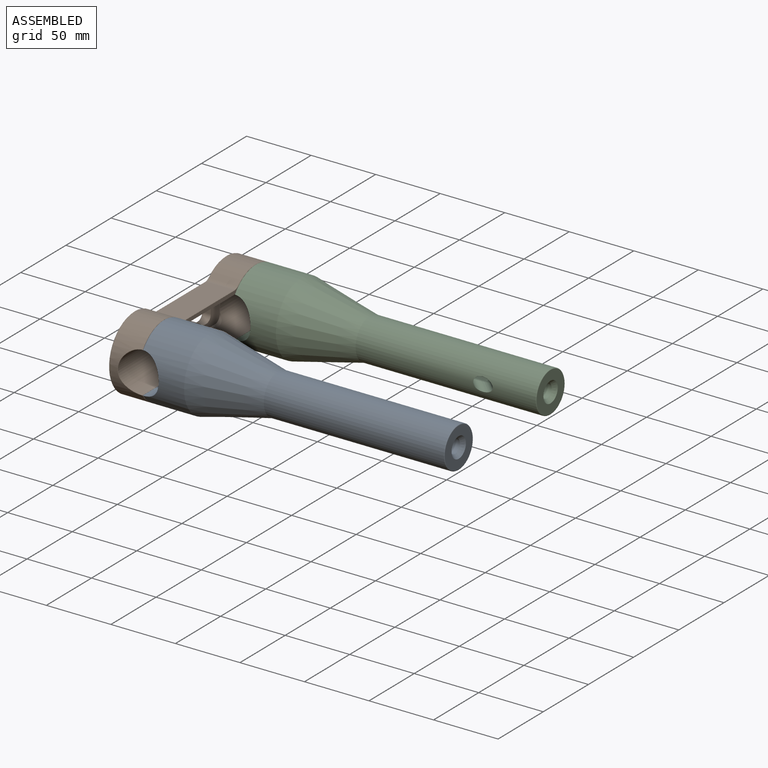
[diagram: assembled view]
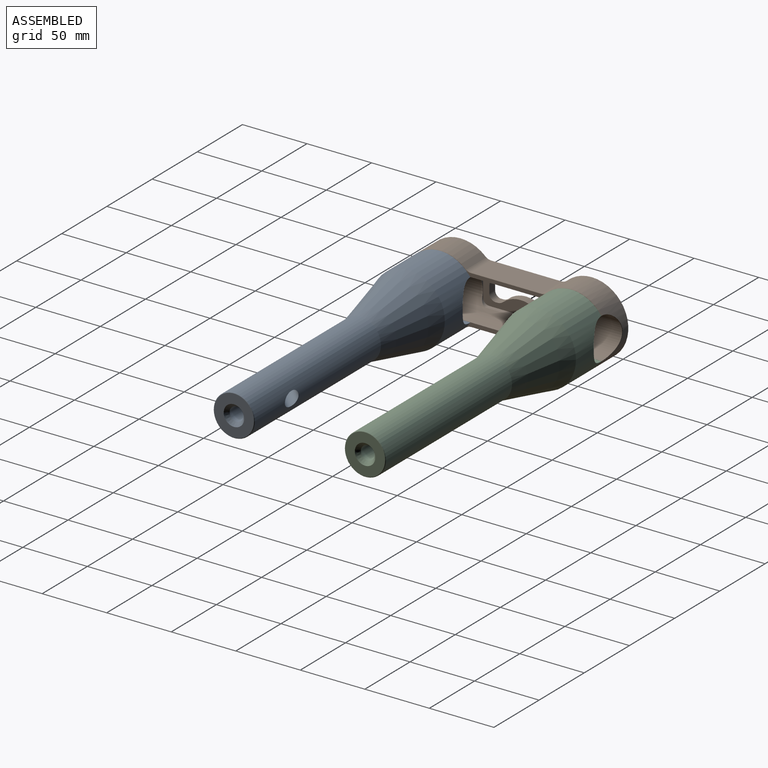
[diagram: assembled view, second angle]
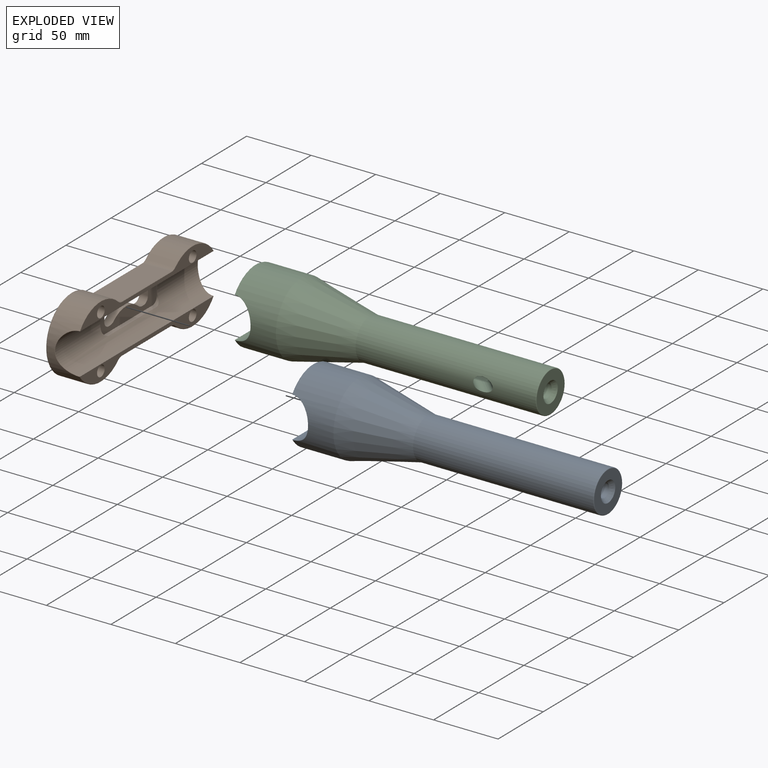
[diagram: exploded view]
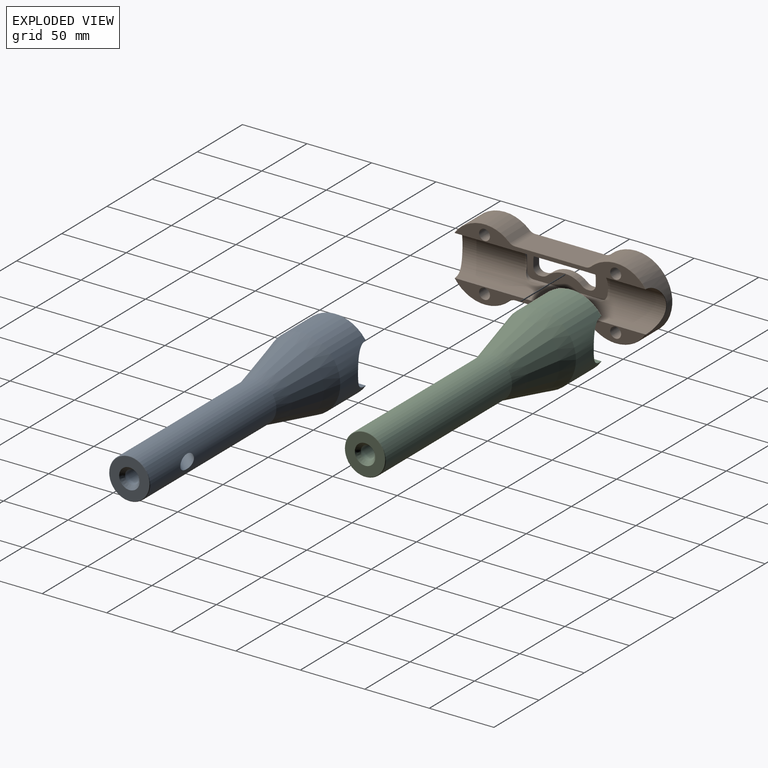
[diagram: exploded view, second angle]
ASSEMBLY  parts=3 mates=2
PART A: 27 faces, bbox 228.6x61.2x61.2 mm
  f0: cylinder r=15.88mm len=139.39mm, axis (-1,0,0), area 13773.8mm2, adj f9,f10,f14
  f1: cylinder r=5.36mm len=210.76mm, axis (1,0,0), area 6916.8mm2, adj f8,f13,f14
  f2: plane 45.43x11.81mm, normal (-1,0,0), area 342.7mm2, adj f12,f17,f26
  f3: torus R=27.75mm, axis (-1,0,0), area 43.1mm2, adj f4,f7,f20,f21
  f4: plane 45.43x11.81mm, normal (-1,0,0), area 342.6mm2, adj f3,f15,f19
  f5: plane 30.73x30.73mm, normal (1,0,0), area 543.9mm2, adj f8,f9
  f6: cone r=28.26mm half-angle=13.1deg, axis (-1,0,0), area 7541.5mm2, adj f10,f11
  f7: cylinder r=28.26mm len=56.52mm, axis (-1,0,0), area 5407.7mm2, adj f3,f11,f12,f22,f23
  f8: cone r=5.36mm half-angle=41deg, axis (1,0,0), area 164.2mm2, adj f1,f5
  f9: torus R=15.37mm, axis (1,0,0), area 78.7mm2, adj f0,f5
  f10: torus R=16.38mm, axis (-1,0,0), area 11.6mm2, adj f0,f6
  f11: torus R=27.75mm, axis (1,0,0), area 20.7mm2, adj f6,f7
  f12: torus R=27.75mm, axis (-1,0,0), area 43.1mm2, adj f2,f7,f24,f25
  f13: cylinder r=15.81mm len=56.25mm, axis (0,0,1), area 2446.5mm2, adj f1,f19,f20,f21,f22,f23,f24,f25
  f14: cylinder r=5.36mm len=27.25mm, axis (-0.71,0,-0.71), area 571.7mm2, adj f0,f1
  f15: cylinder r=3.26mm len=25.4mm, axis (-1,0,0), area 520.9mm2, adj f4,f16
  f16: cone r=0mm half-angle=59deg, axis (-1,0,0), area 39mm2, adj f15
  f17: cylinder r=3.26mm len=25.4mm, axis (-1,0,0), area 520.9mm2, adj f2,f18
  f18: cone r=0mm half-angle=59deg, axis (-1,0,0), area 39mm2, adj f17
  f19: plane 45.43x0.14mm, normal (-0.71,-0.7,0), area 8.6mm2, adj f4,f13,f20,f21
  f20: bspline ~0.57x0.52mm, area 0.2mm2, adj f3,f13,f19,f22
  f21: bspline ~0.57x0.51mm, area 0.2mm2, adj f3,f13,f19,f23
  f22: bspline ~32.03x15.45mm, area 10.8mm2, adj f7,f13,f20,f24
  f23: bspline ~32.03x15.45mm, area 10.8mm2, adj f7,f13,f21,f25
  f24: bspline ~0.57x0.51mm, area 0.2mm2, adj f12,f13,f22,f26
  f25: bspline ~0.57x0.52mm, area 0.2mm2, adj f12,f13,f23,f26
  f26: plane 45.43x0.14mm, normal (-0.71,0.7,0), area 8.5mm2, adj f2,f13,f24,f25
PART B: 119 faces, bbox 158.1x56.5x27.9 mm
  f0: plane 157.1x55.5mm, normal (0,0,1), area 4265.1mm2, adj f33,f34,f35,f36,f37,f38,f40,f41
  f1: plane 62.85x25.4mm, normal (0,0,-1), area 921.2mm2, adj f13,f14,f15,f16,f17,f18,f19,f20
  f2: plane 147.83x12.19mm, normal (0,0,-1), area 850.5mm2, adj f3,f16,f17,f20,f50,f56,f107,f108
  f3: cylinder r=15.81mm len=157.85mm, axis (1,0,0), area 5450.6mm2, adj f2,f12,f13,f14,f15,f16,f17,f18
  f4: cylinder r=6.6mm len=22.1mm, axis (0,0,-1), area 108.6mm2, adj f5,f11,f91,f108
  f5: cylinder r=28.26mm len=56.52mm, axis (0,0,-1), area 2479.4mm2, adj f4,f6,f93,f107,f116,f118
  f6: cylinder r=6.6mm len=22.1mm, axis (0,0,-1), area 108.6mm2, adj f5,f7,f94,f115
  f7: plane 54.39x22.1mm, normal (0,1,0), area 1201.9mm2, adj f6,f8,f92,f114
  f8: cylinder r=6.6mm len=22.1mm, axis (0,0,-1), area 108.6mm2, adj f7,f9,f90,f113
  f9: cylinder r=28.26mm len=56.52mm, axis (0,0,-1), area 2479.4mm2, adj f8,f10,f88,f111,f112,f117
  f10: cylinder r=6.6mm len=22.1mm, axis (0,0,-1), area 108.6mm2, adj f9,f11,f87,f110
  f11: plane 54.39x22.1mm, normal (0,-1,0), area 1201.9mm2, adj f4,f10,f89,f109
  f12: plane 147.83x12.19mm, normal (0,0,-1), area 853.9mm2, adj f3,f47,f53,f112,f113,f114,f115,f116
  f13: plane 53.2x3.38mm, normal (0,-1,0), area 179.9mm2, adj f1,f3,f14,f19
  f14: cylinder r=4.83mm len=4.83mm, axis (0,0,-1), area 16.2mm2, adj f1,f3,f13,f15
  f15: plane 15.75x4.69mm, normal (1,0,0), area 19.6mm2, adj f1,f3,f14,f16
  f16: cylinder r=4.83mm len=16mm, axis (0,0,-1), area 75.8mm2, adj f1,f2,f3,f15,f20
  f17: cylinder r=4.83mm len=16mm, axis (0,0,-1), area 75.8mm2, adj f1,f2,f3,f18,f20
  f18: plane 15.75x4.69mm, normal (-1,0,0), area 19.6mm2, adj f1,f3,f17,f19
  f19: cylinder r=4.83mm len=4.83mm, axis (0,0,-1), area 16.2mm2, adj f1,f3,f13,f18
  f20: plane 53.2x16mm, normal (0,1,0), area 851.3mm2, adj f1,f2,f16,f17
  f21: cylinder r=20.64mm len=27.15mm, axis (0,0,-1), area 188.1mm2, adj f1,f22,f32,f83
  f22: cylinder r=6.6mm len=6.35mm, axis (0,0,-1), area 30.1mm2, adj f1,f21,f23,f85
  f23: plane 6.35x1.39mm, normal (0,-1,0), area 8.8mm2, adj f1,f22,f24,f86
  f24: cylinder r=4.83mm len=6.35mm, axis (0,0,-1), area 48.1mm2, adj f1,f23,f25,f84
  f25: plane 6.35x5.71mm, normal (-1,0,0), area 36.3mm2, adj f1,f24,f26,f82
  f26: cylinder r=6.6mm len=6.6mm, axis (0,0,-1), area 65.9mm2, adj f1,f25,f27,f80
  f27: plane 35.05x6.35mm, normal (0,1,0), area 222.6mm2, adj f1,f26,f28,f78
  f28: cylinder r=6.6mm len=6.6mm, axis (0,0,-1), area 65.9mm2, adj f1,f27,f29,f76
  f29: plane 6.35x5.71mm, normal (1,0,0), area 36.3mm2, adj f1,f28,f30,f75
  f30: cylinder r=4.83mm len=6.35mm, axis (0,0,-1), area 48.1mm2, adj f1,f29,f31,f77
  f31: plane 6.35x1.39mm, normal (0,-1,0), area 8.8mm2, adj f1,f30,f32,f79
  f32: cylinder r=6.6mm len=6.35mm, axis (0,0,-1), area 30.1mm2, adj f1,f21,f31,f81
  f33: plane 14.37x2.29mm, normal (0,-1,0), area 32.9mm2, adj f0,f66,f97,f98
  f34: plane 12.45x7.19mm, normal (0.87,-0.5,0), area 32.9mm2, adj f0,f65,f96,f97
  f35: plane 12.45x7.19mm, normal (0.87,0.5,0), area 32.9mm2, adj f0,f67,f95,f96
  f36: plane 14.37x2.29mm, normal (0,1,0), area 32.9mm2, adj f0,f69,f95,f99
  f37: plane 12.45x7.19mm, normal (-0.87,0.5,0), area 32.9mm2, adj f0,f70,f99,f100
  f38: plane 12.45x7.19mm, normal (-0.87,-0.5,0), area 32.9mm2, adj f0,f68,f98,f100
  f39: plane 28.74x24.89mm, normal (0,0,1), area 536.6mm2, adj f65,f66,f67,f68,f69,f70
  f40: plane 14.37x2.29mm, normal (0,1,0), area 32.9mm2, adj f0,f63,f101,f105
  f41: plane 12.45x7.19mm, normal (-0.87,0.5,0), area 32.9mm2, adj f0,f64,f105,f106
  f42: plane 12.45x7.19mm, normal (-0.87,-0.5,0), area 32.9mm2, adj f0,f62,f104,f106
  f43: plane 14.37x2.29mm, normal (0,-1,0), area 32.9mm2, adj f0,f60,f103,f104
  f44: plane 12.45x7.19mm, normal (0.87,-0.5,0), area 32.9mm2, adj f0,f59,f102,f103
  f45: plane 12.45x7.19mm, normal (0.87,0.5,0), area 32.9mm2, adj f0,f61,f101,f102
  f46: plane 28.74x24.89mm, normal (0,0,1), area 536.6mm2, adj f59,f60,f61,f62,f63,f64
  f47: cylinder r=4.22mm len=14.92mm, axis (0,0,1), area 395.3mm2, adj f12,f48
  f48: plane 13.49x13.49mm, normal (0,0,1), area 87.2mm2, adj f47,f49
  f49: cylinder r=6.75mm len=13.49mm, axis (0,0,1), area 325.7mm2, adj f48,f74
  f50: cylinder r=4.22mm len=14.92mm, axis (0,0,1), area 395.3mm2, adj f2,f51
  f51: plane 13.49x13.49mm, normal (0,0,1), area 87.2mm2, adj f50,f52
  f52: cylinder r=6.75mm len=13.49mm, axis (0,0,1), area 325.7mm2, adj f51,f73
  f53: cylinder r=4.22mm len=14.92mm, axis (0,0,1), area 395.3mm2, adj f12,f54
  f54: plane 13.49x13.49mm, normal (0,0,1), area 87.2mm2, adj f53,f55
  f55: cylinder r=6.75mm len=13.49mm, axis (0,0,1), area 325.7mm2, adj f54,f71
  f56: cylinder r=4.22mm len=14.92mm, axis (0,0,1), area 395.3mm2, adj f2,f57
  f57: plane 13.49x13.49mm, normal (0,0,1), area 87.2mm2, adj f56,f58
  f58: cylinder r=6.75mm len=13.49mm, axis (0,0,1), area 325.7mm2, adj f57,f72
  f59: plane 12.68x7.46mm, normal (0.61,-0.35,0.71), area 5.2mm2, adj f44,f46,f60,f61,f102,f103
  f60: plane 14.64x0.27mm, normal (0,-0.71,0.71), area 5.2mm2, adj f43,f46,f59,f62,f103,f104
  f61: plane 12.68x7.46mm, normal (0.61,0.35,0.71), area 5.2mm2, adj f45,f46,f59,f63,f101,f102
  f62: plane 12.68x7.46mm, normal (-0.61,-0.35,0.71), area 5.2mm2, adj f42,f46,f60,f64,f104,f106
  f63: plane 14.64x0.27mm, normal (0,0.71,0.71), area 5.2mm2, adj f40,f46,f61,f64,f101,f105
  f64: plane 12.68x7.46mm, normal (-0.61,0.35,0.71), area 5.2mm2, adj f41,f46,f62,f63,f105,f106
  f65: plane 12.68x7.46mm, normal (0.61,-0.35,0.71), area 5.2mm2, adj f34,f39,f66,f67,f96,f97
  f66: plane 14.64x0.27mm, normal (0,-0.71,0.71), area 5.2mm2, adj f33,f39,f65,f68,f97,f98
  f67: plane 12.68x7.46mm, normal (0.61,0.35,0.71), area 5.2mm2, adj f35,f39,f65,f69,f95,f96
  f68: plane 12.68x7.46mm, normal (-0.61,-0.35,0.71), area 5.2mm2, adj f38,f39,f66,f70,f98,f100
  f69: plane 14.64x0.27mm, normal (0,0.71,0.71), area 5.2mm2, adj f36,f39,f67,f70,f95,f99
  f70: plane 12.68x7.46mm, normal (-0.61,0.35,0.71), area 5.2mm2, adj f37,f39,f68,f69,f99,f100
  f71: cone r=6.75mm half-angle=45deg, axis (0,0,1), area 15.5mm2, adj f0,f55
  f72: cone r=6.75mm half-angle=45deg, axis (0,0,1), area 15.5mm2, adj f0,f58
  f73: cone r=6.75mm half-angle=45deg, axis (0,0,1), area 15.5mm2, adj f0,f52
  f74: cone r=6.75mm half-angle=45deg, axis (0,0,1), area 15.5mm2, adj f0,f49
  f75: plane 5.71x0.51mm, normal (0.71,0,0.71), area 4.1mm2, adj f0,f29,f76,f77
  f76: cone r=6.6mm half-angle=45deg, axis (0,0,1), area 7.7mm2, adj f0,f28,f75,f78
  f77: cone r=4.83mm half-angle=45deg, axis (0,0,1), area 5.7mm2, adj f0,f30,f75,f79
  f78: plane 35.05x0.51mm, normal (0,0.71,0.71), area 25.2mm2, adj f0,f27,f76,f80
  f79: plane 1.39x0.51mm, normal (0,-0.71,0.71), area 1mm2, adj f0,f31,f77,f81
  f80: cone r=6.6mm half-angle=45deg, axis (0,0,1), area 7.7mm2, adj f0,f26,f78,f82
  f81: cone r=6.6mm half-angle=45deg, axis (0,0,1), area 3.5mm2, adj f0,f32,f79,f83
  f82: plane 5.71x0.51mm, normal (-0.71,0,0.71), area 4.1mm2, adj f0,f25,f80,f84
  f83: cone r=20.13mm half-angle=45deg, axis (0,0,-1), area 21mm2, adj f0,f21,f81,f85
  f84: cone r=4.83mm half-angle=45deg, axis (0,0,1), area 5.7mm2, adj f0,f24,f82,f86
  f85: cone r=6.6mm half-angle=45deg, axis (0,0,1), area 3.5mm2, adj f0,f22,f83,f86
  f86: plane 1.39x0.51mm, normal (0,-0.71,0.71), area 1mm2, adj f0,f23,f84,f85
  f87: cone r=6.6mm half-angle=45deg, axis (0,0,1), area 3.7mm2, adj f0,f10,f88,f89
  f88: cone r=27.75mm half-angle=45deg, axis (0,0,-1), area 93.1mm2, adj f0,f9,f87,f90
  f89: plane 54.39x0.51mm, normal (0,-0.71,0.71), area 39.1mm2, adj f0,f11,f87,f91
  f90: cone r=6.6mm half-angle=45deg, axis (0,0,1), area 3.7mm2, adj f0,f8,f88,f92
  f91: cone r=6.6mm half-angle=45deg, axis (0,0,1), area 3.7mm2, adj f0,f4,f89,f93
  f92: plane 54.39x0.51mm, normal (0,0.71,0.71), area 39.1mm2, adj f0,f7,f90,f94
  f93: cone r=27.75mm half-angle=45deg, axis (0,0,-1), area 93.1mm2, adj f0,f5,f91,f94
  f94: cone r=6.6mm half-angle=45deg, axis (0,0,1), area 3.7mm2, adj f0,f6,f92,f93
  f95: cylinder r=0.25mm len=2.32mm, axis (0,0,-1), area 0.6mm2, adj f0,f35,f36,f67,f69
  f96: cylinder r=0.25mm len=2.32mm, axis (0,0,-1), area 0.6mm2, adj f0,f34,f35,f65,f67
  f97: cylinder r=0.25mm len=2.32mm, axis (0,0,-1), area 0.6mm2, adj f0,f33,f34,f65,f66
  f98: cylinder r=0.25mm len=2.32mm, axis (0,0,-1), area 0.6mm2, adj f0,f33,f38,f66,f68
  f99: cylinder r=0.25mm len=2.32mm, axis (0,0,-1), area 0.6mm2, adj f0,f36,f37,f69,f70
  f100: cylinder r=0.25mm len=2.32mm, axis (0,0,-1), area 0.6mm2, adj f0,f37,f38,f68,f70
  f101: cylinder r=0.25mm len=2.32mm, axis (0,0,-1), area 0.6mm2, adj f0,f40,f45,f61,f63
  f102: cylinder r=0.25mm len=2.32mm, axis (0,0,-1), area 0.6mm2, adj f0,f44,f45,f59,f61
  f103: cylinder r=0.25mm len=2.32mm, axis (0,0,-1), area 0.6mm2, adj f0,f43,f44,f59,f60
  f104: cylinder r=0.25mm len=2.32mm, axis (0,0,-1), area 0.6mm2, adj f0,f42,f43,f60,f62
  f105: cylinder r=0.25mm len=2.32mm, axis (0,0,-1), area 0.6mm2, adj f0,f40,f41,f63,f64
  f106: cylinder r=0.25mm len=2.32mm, axis (0,0,-1), area 0.6mm2, adj f0,f41,f42,f62,f64
  f107: cone r=28.26mm half-angle=45deg, axis (0,0,1), area 17.3mm2, adj f2,f3,f5,f108,f118
  f108: cone r=6.86mm half-angle=45deg, axis (0,0,-1), area 1.8mm2, adj f2,f4,f107,f109
  f109: plane 54.39x0.25mm, normal (0,-0.71,-0.71), area 19.5mm2, adj f2,f11,f108,f110
  f110: cone r=6.86mm half-angle=45deg, axis (0,0,-1), area 1.8mm2, adj f2,f10,f109,f111
  f111: cone r=28.26mm half-angle=45deg, axis (0,0,1), area 17.3mm2, adj f2,f3,f9,f110,f117
  f112: cone r=28.26mm half-angle=45deg, axis (0,0,1), area 17.3mm2, adj f3,f9,f12,f113,f117
  f113: cone r=6.86mm half-angle=45deg, axis (0,0,-1), area 1.8mm2, adj f8,f12,f112,f114
  f114: plane 54.39x0.25mm, normal (0,0.71,-0.71), area 19.5mm2, adj f7,f12,f113,f115
  f115: cone r=6.86mm half-angle=45deg, axis (0,0,-1), area 1.8mm2, adj f6,f12,f114,f116
  f116: cone r=28.26mm half-angle=45deg, axis (0,0,1), area 17.3mm2, adj f3,f5,f12,f115,f118
  f117: bspline ~32.26x18.45mm, area 10.9mm2, adj f3,f9,f111,f112
  f118: bspline ~32.26x18.45mm, area 10.9mm2, adj f3,f5,f107,f116
PART C: same geometry as A
PLACE A rot(axis=(-1,0,0),90deg) t=(-9.8,-63.29,-33.03)mm
PLACE B rot(axis=(-0.58,-0.58,0.58),120deg) t=(-9.8,-12.49,-33.03)mm
PLACE C rot(axis=(1,0,0),90deg) t=(-9.8,38.31,-33.03)mm
MATE planar B.f53 <-> C.f17  axis (-1,0,0) through (-9.8,38.31,-53.67)mm
MATE planar A.f15 <-> B.f47  axis (-1,0,0) through (-9.8,-63.29,-53.67)mm
